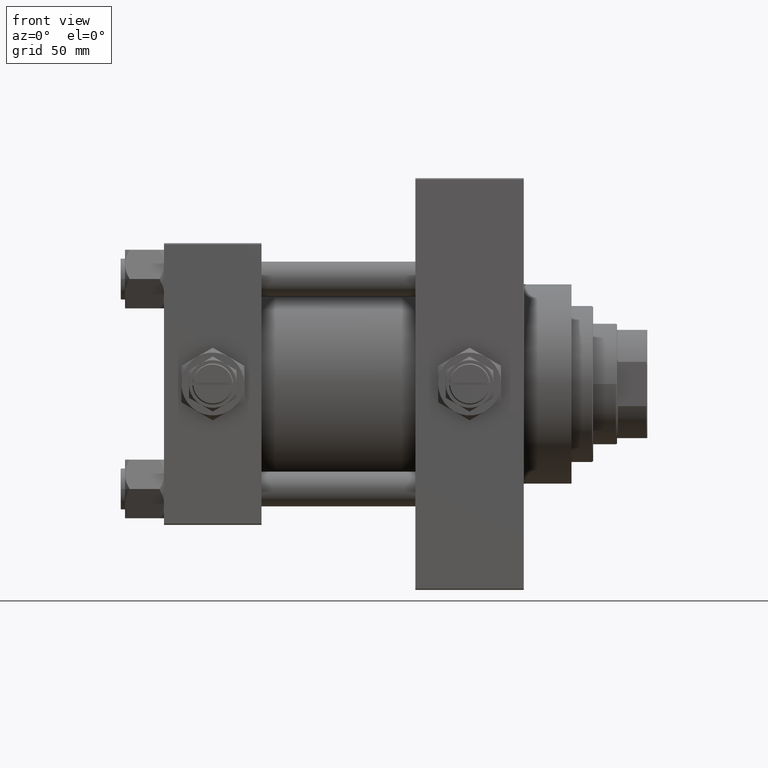
[diagram: clean part render]
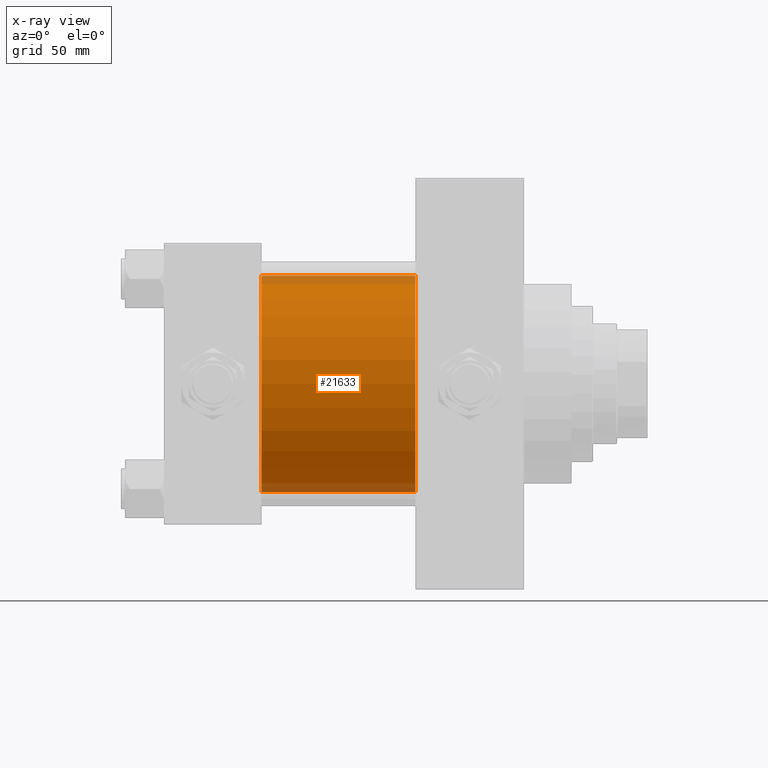
[diagram: x-ray — body ghosted, one internal face saturated and labeled with its STEP entity id]
A machine part, front view, then the same camera in x-ray: the body is ghosted and one INTERNAL B-rep face — a face not visible from any outside direction — is saturated and labeled: STEP entity #21633.
In plain terms, the highlighted cylindrical surface (partial cylindrical patch) has radius 50 mm, axis along (-1, -0, -0).
Its self-contained STEP definition (entity closure, byte-faithful):
#58 = ORIENTED_EDGE ( 'NONE', *, *, #24575, .T. ) ;
#1553 = ORIENTED_EDGE ( 'NONE', *, *, #8734, .T. ) ;
#1758 = VECTOR ( 'NONE', #8241, 1000.000000000000000 ) ;
#3899 = CARTESIAN_POINT ( 'NONE',  ( 115.9999999999999858, -2.602085213965210642E-15, 50.00000000000000000 ) ) ;
#5891 = DIRECTION ( 'NONE',  ( 0.000000000000000000, 0.000000000000000000, -1.000000000000000000 ) ) ;
#6581 = EDGE_CURVE ( 'NONE', #37381, #9502, #23408, .T. ) ;
#7062 = VECTOR ( 'NONE', #38675, 1000.000000000000000 ) ;
#8110 = DIRECTION ( 'NONE',  ( -1.000000000000000000, -0.000000000000000000, -0.000000000000000000 ) ) ;
#8241 = DIRECTION ( 'NONE',  ( -1.000000000000000000, -0.000000000000000000, -0.000000000000000000 ) ) ;
#8734 = EDGE_CURVE ( 'NONE', #12555, #43123, #30749, .T. ) ;
#9502 = VERTEX_POINT ( 'NONE', #10974 ) ;
#9667 = CARTESIAN_POINT ( 'NONE',  ( 115.9999999999999858, -2.602085213965210642E-15, 0.000000000000000000 ) ) ;
#10974 = CARTESIAN_POINT ( 'NONE',  ( 45.00000000000000000, 3.521148781771555838E-15, -50.00000000000000000 ) ) ;
#11970 = LINE ( 'NONE', #3899, #7062 ) ;
#12555 = VERTEX_POINT ( 'NONE', #25195 ) ;
#13189 = DIRECTION ( 'NONE',  ( 1.000000000000000000, 0.000000000000000000, 0.000000000000000000 ) ) ;
#16170 = CARTESIAN_POINT ( 'NONE',  ( 115.9999999999999858, -2.602085213965210642E-15, 0.000000000000000000 ) ) ;
#16418 = DIRECTION ( 'NONE',  ( 0.000000000000000000, 0.000000000000000000, 1.000000000000000000 ) ) ;
#20432 = CYLINDRICAL_SURFACE ( 'NONE', #35087, 50.00000000000000000 ) ;
#20994 = DIRECTION ( 'NONE',  ( 1.000000000000000000, 0.000000000000000000, 0.000000000000000000 ) ) ;
#21633 = ADVANCED_FACE ( 'NONE', ( #43146 ), #20432, .F. ) ;
#23408 = CIRCLE ( 'NONE', #27432, 50.00000000000000000 ) ;
#24015 = DIRECTION ( 'NONE',  ( 0.000000000000000000, 0.000000000000000000, -1.000000000000000000 ) ) ;
#24575 = EDGE_CURVE ( 'NONE', #43123, #9502, #31165, .T. ) ;
#25195 = CARTESIAN_POINT ( 'NONE',  ( 115.9999999999999858, -2.602085213965210642E-15, 50.00000000000000000 ) ) ;
#25466 = EDGE_LOOP ( 'NONE', ( #1553, #58, #45711, #36563 ) ) ;
#26875 = CARTESIAN_POINT ( 'NONE',  ( 115.9999999999999858, 3.521148781771555838E-15, -50.00000000000000000 ) ) ;
#27432 = AXIS2_PLACEMENT_3D ( 'NONE', #36112, #13189, #24015 ) ;
#30749 = CIRCLE ( 'NONE', #47648, 50.00000000000000000 ) ;
#31165 = LINE ( 'NONE', #26875, #1758 ) ;
#35087 = AXIS2_PLACEMENT_3D ( 'NONE', #16170, #8110, #16418 ) ;
#35731 = CARTESIAN_POINT ( 'NONE',  ( 115.9999999999999858, 3.521148781771555838E-15, -50.00000000000000000 ) ) ;
#36112 = CARTESIAN_POINT ( 'NONE',  ( 45.00000000000000000, -2.602085213965210642E-15, 0.000000000000000000 ) ) ;
#36563 = ORIENTED_EDGE ( 'NONE', *, *, #40094, .F. ) ;
#37381 = VERTEX_POINT ( 'NONE', #37677 ) ;
#37677 = CARTESIAN_POINT ( 'NONE',  ( 45.00000000000000000, -2.602085213965210642E-15, 50.00000000000000000 ) ) ;
#38675 = DIRECTION ( 'NONE',  ( -1.000000000000000000, -0.000000000000000000, -0.000000000000000000 ) ) ;
#40094 = EDGE_CURVE ( 'NONE', #12555, #37381, #11970, .T. ) ;
#43123 = VERTEX_POINT ( 'NONE', #35731 ) ;
#43146 = FACE_OUTER_BOUND ( 'NONE', #25466, .T. ) ;
#45711 = ORIENTED_EDGE ( 'NONE', *, *, #6581, .F. ) ;
#47648 = AXIS2_PLACEMENT_3D ( 'NONE', #9667, #20994, #5891 ) ;